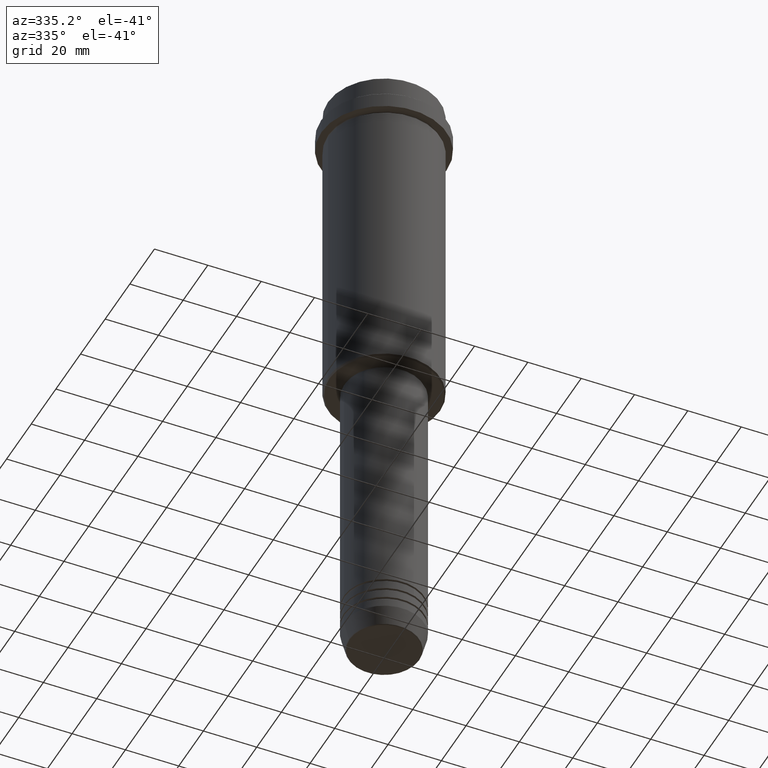
[diagram: clean part render]
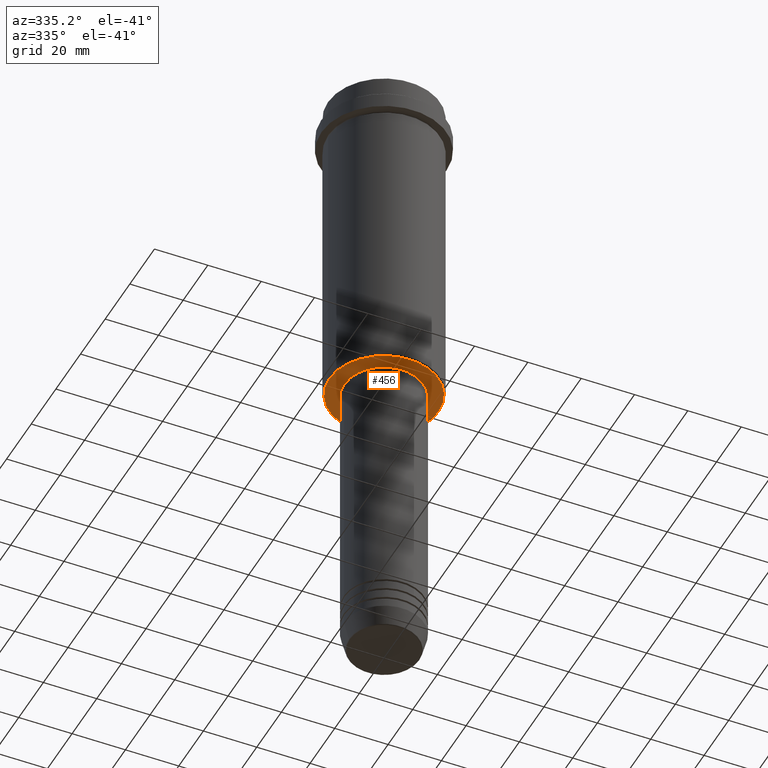
[diagram: same view with one face highlighted and labeled with its STEP entity id]
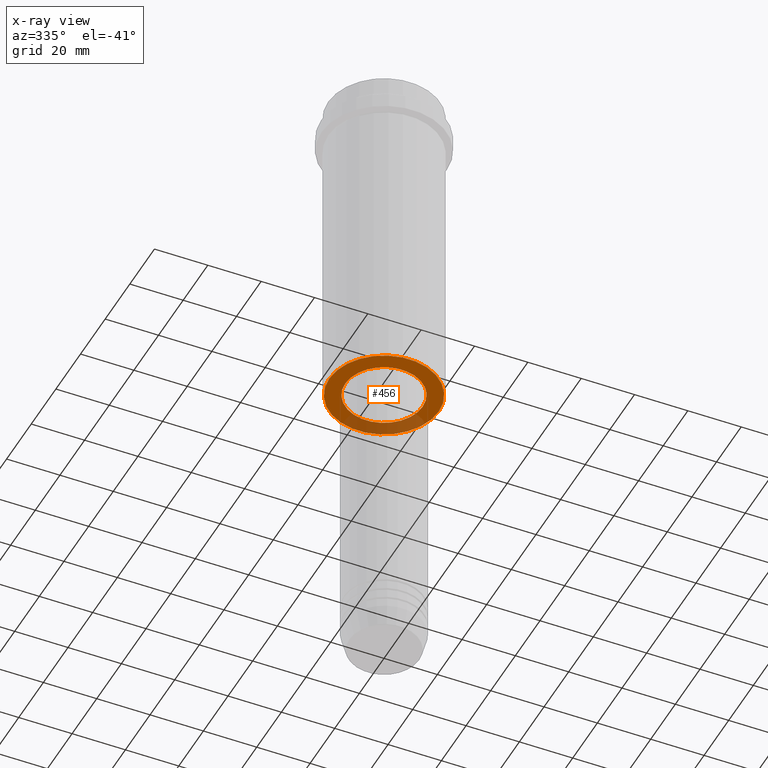
[diagram: x-ray of the same camera — body ghosted, the highlighted face saturated]
A machine part, auxiliary view. The second image highlights one B-rep face of the part: STEP entity #456.
The next image is the same camera in x-ray: the body ghosted, the highlighted face saturated — about 26% of this face is hidden behind the body in this view.
In plain terms, the highlighted planar face has unit normal (0, 0, -1).
Its self-contained STEP definition (entity closure, byte-faithful):
#40 = ORIENTED_EDGE ( 'NONE', *, *, #920, .T. ) ;
#95 = PLANE ( 'NONE',  #607 ) ;
#114 = DIRECTION ( 'NONE',  ( 1.000000000000000000, 0.000000000000000000, 0.000000000000000000 ) ) ;
#175 = DIRECTION ( 'NONE',  ( -1.000000000000000000, 0.000000000000000000, 0.000000000000000000 ) ) ;
#202 = FACE_BOUND ( 'NONE', #433, .T. ) ;
#295 = AXIS2_PLACEMENT_3D ( 'NONE', #763, #561, #114 ) ;
#308 = DIRECTION ( 'NONE',  ( -0.000000000000000000, -0.000000000000000000, 1.000000000000000000 ) ) ;
#321 = EDGE_CURVE ( 'NONE', #738, #948, #820, .T. ) ;
#339 = ORIENTED_EDGE ( 'NONE', *, *, #321, .T. ) ;
#358 = CARTESIAN_POINT ( 'NONE',  ( -14.49999999999999467, 1.775737858763661620E-15, -124.9999999999999858 ) ) ;
#433 = EDGE_LOOP ( 'NONE', ( #1372, #479 ) ) ;
#445 = EDGE_CURVE ( 'NONE', #1216, #640, #540, .T. ) ;
#447 = CIRCLE ( 'NONE', #295, 14.49999999999999467 ) ;
#456 = ADVANCED_FACE ( 'NONE', ( #742, #202 ), #95, .T. ) ;
#479 = ORIENTED_EDGE ( 'NONE', *, *, #445, .T. ) ;
#487 = EDGE_CURVE ( 'NONE', #640, #1216, #447, .T. ) ;
#516 = AXIS2_PLACEMENT_3D ( 'NONE', #688, #1133, #175 ) ;
#540 = CIRCLE ( 'NONE', #1143, 14.49999999999999467 ) ;
#548 = CARTESIAN_POINT ( 'NONE',  ( -20.49999999999996447, 2.541142108230755902E-15, -124.9999999999999858 ) ) ;
#561 = DIRECTION ( 'NONE',  ( -0.000000000000000000, -0.000000000000000000, 1.000000000000000000 ) ) ;
#595 = DIRECTION ( 'NONE',  ( 0.000000000000000000, 0.000000000000000000, -1.000000000000000000 ) ) ;
#607 = AXIS2_PLACEMENT_3D ( 'NONE', #1261, #1406, #1106 ) ;
#640 = VERTEX_POINT ( 'NONE', #1352 ) ;
#688 = CARTESIAN_POINT ( 'NONE',  ( 0.000000000000000000, 0.000000000000000000, -124.9999999999999858 ) ) ;
#738 = VERTEX_POINT ( 'NONE', #1030 ) ;
#742 = FACE_OUTER_BOUND ( 'NONE', #909, .T. ) ;
#763 = CARTESIAN_POINT ( 'NONE',  ( 0.000000000000000000, 0.000000000000000000, -124.9999999999999858 ) ) ;
#820 = CIRCLE ( 'NONE', #516, 20.49999999999996447 ) ;
#909 = EDGE_LOOP ( 'NONE', ( #339, #40 ) ) ;
#920 = EDGE_CURVE ( 'NONE', #948, #738, #1344, .T. ) ;
#948 = VERTEX_POINT ( 'NONE', #548 ) ;
#949 = CARTESIAN_POINT ( 'NONE',  ( 0.000000000000000000, 0.000000000000000000, -124.9999999999999858 ) ) ;
#1030 = CARTESIAN_POINT ( 'NONE',  ( 20.49999999999996447, 0.000000000000000000, -124.9999999999999858 ) ) ;
#1036 = DIRECTION ( 'NONE',  ( -1.000000000000000000, 0.000000000000000000, 0.000000000000000000 ) ) ;
#1097 = AXIS2_PLACEMENT_3D ( 'NONE', #949, #595, #1036 ) ;
#1106 = DIRECTION ( 'NONE',  ( -1.000000000000000000, 0.000000000000000000, -0.000000000000000000 ) ) ;
#1133 = DIRECTION ( 'NONE',  ( 0.000000000000000000, 0.000000000000000000, -1.000000000000000000 ) ) ;
#1143 = AXIS2_PLACEMENT_3D ( 'NONE', #1288, #308, #1272 ) ;
#1216 = VERTEX_POINT ( 'NONE', #358 ) ;
#1261 = CARTESIAN_POINT ( 'NONE',  ( 0.000000000000000000, 21.00000000000000000, -124.9999999999999858 ) ) ;
#1272 = DIRECTION ( 'NONE',  ( 1.000000000000000000, 0.000000000000000000, 0.000000000000000000 ) ) ;
#1288 = CARTESIAN_POINT ( 'NONE',  ( 0.000000000000000000, 0.000000000000000000, -124.9999999999999858 ) ) ;
#1344 = CIRCLE ( 'NONE', #1097, 20.49999999999996447 ) ;
#1352 = CARTESIAN_POINT ( 'NONE',  ( 14.49999999999999467, 0.000000000000000000, -124.9999999999999858 ) ) ;
#1372 = ORIENTED_EDGE ( 'NONE', *, *, #487, .T. ) ;
#1406 = DIRECTION ( 'NONE',  ( 0.000000000000000000, 0.000000000000000000, -1.000000000000000000 ) ) ;